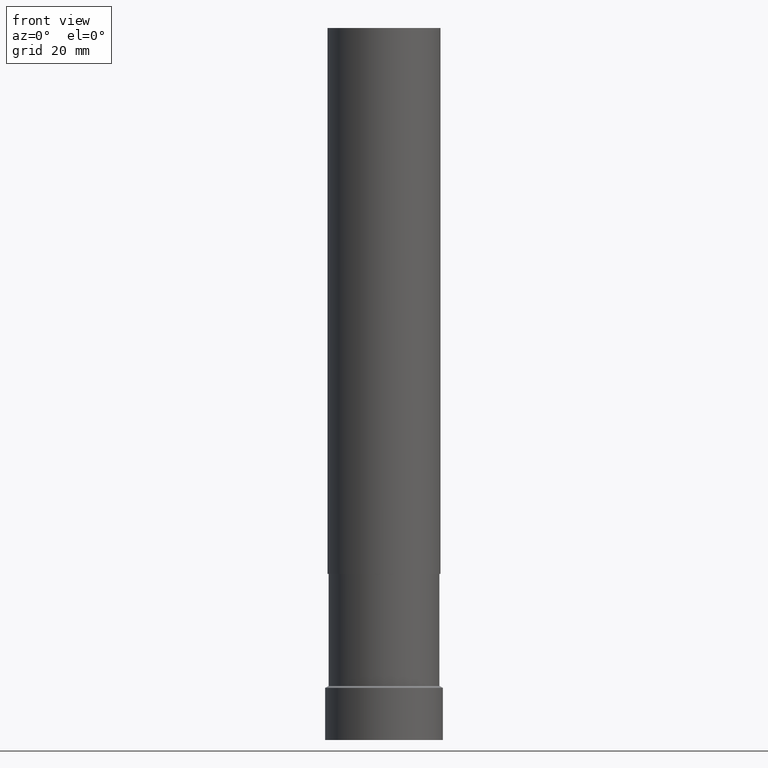
[diagram: clean part render]
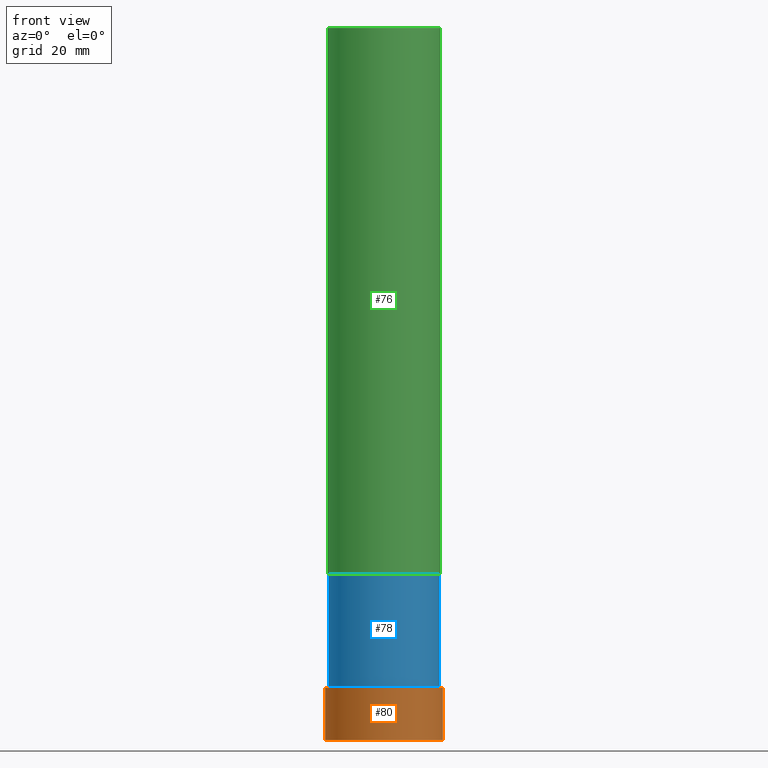
[diagram: same view with three faces highlighted in distinct colors, each labeled with its STEP entity id]
A machine part, front view with three faces highlighted in distinct colors.
Their STEP definitions:

[orange] entity #80 — the highlighted cylindrical surface (bore or boss wall) has radius 12.5 mm, axis along (-0, 0, 1).
#80=ADVANCED_FACE('',(#97,#98),#99,.T.);
#97=FACE_BOUND('',#116,.T.);
#98=FACE_BOUND('',#117,.T.);
#99=CYLINDRICAL_SURFACE('',#118,12.5);
#116=EDGE_LOOP('',(#145));
#117=EDGE_LOOP('',(#146));
#118=AXIS2_PLACEMENT_3D('',#147,#148,#149);
#145=ORIENTED_EDGE('',*,*,#159,.F.);
#146=ORIENTED_EDGE('',*,*,#158,.T.);
#147=CARTESIAN_POINT('',(-3.3647456673341E-016,7.03096171323307E-015,5.49504668558603));
#148=DIRECTION('',(-6.12323399573677E-017,1.27950900429579E-015,1.0));
#149=DIRECTION('',(7.35201775987839E-032,1.0,-1.27950900429579E-015));
#158=EDGE_CURVE('',#168,#168,#169,.T.);
#159=EDGE_CURVE('',#170,#170,#171,.T.);
#168=VERTEX_POINT('',#180);
#169=CIRCLE('',#181,12.5);
#170=VERTEX_POINT('',#182);
#171=CIRCLE('',#183,12.5000000000001);
#180=CARTESIAN_POINT('',(-6.72949133466819E-016,12.5,10.990093371172));
#181=AXIS2_PLACEMENT_3D('',#196,#197,#198);
#182=CARTESIAN_POINT('',(1.57772181044202E-030,12.5000000000001,-2.8421709430404E-014));
#183=AXIS2_PLACEMENT_3D('',#199,#200,#201);
#196=CARTESIAN_POINT('',(-6.72949133466821E-016,1.40619234264661E-014,10.9900933711721));
#197=DIRECTION('',(6.12323399573677E-017,-1.27950900429579E-015,-1.0));
#198=DIRECTION('',(7.35201775987839E-032,1.0,-1.27950900429579E-015));
#199=CARTESIAN_POINT('',(0.0,0.0,0.0));
#200=DIRECTION('',(6.12323399573677E-017,-1.27950900429579E-015,-1.0));
#201=DIRECTION('',(7.35201775987839E-032,1.0,-1.27950900429579E-015));

[blue] entity #78 — the highlighted cylindrical surface (bore or boss wall) has radius 11.75 mm, axis along (-0, 0, 1).
#78=ADVANCED_FACE('',(#91,#92),#93,.T.);
#91=FACE_BOUND('',#110,.T.);
#92=FACE_BOUND('',#111,.T.);
#93=CYLINDRICAL_SURFACE('',#112,11.75);
#110=EDGE_LOOP('',(#135));
#111=EDGE_LOOP('',(#136));
#112=AXIS2_PLACEMENT_3D('',#137,#138,#139);
#135=ORIENTED_EDGE('',*,*,#157,.F.);
#136=ORIENTED_EDGE('',*,*,#156,.T.);
#137=CARTESIAN_POINT('',(-1.42028942159775E-015,2.96783220256753E-014,23.1950864949243));
#138=DIRECTION('',(-6.12323399573677E-017,1.27950900429579E-015,1.0));
#139=DIRECTION('',(7.35201775987839E-032,1.0,-1.27950900429579E-015));
#156=EDGE_CURVE('',#164,#164,#165,.T.);
#157=EDGE_CURVE('',#166,#166,#167,.T.);
#164=VERTEX_POINT('',#176);
#165=CIRCLE('',#177,11.7499999999999);
#166=VERTEX_POINT('',#178);
#167=CIRCLE('',#179,11.75);
#176=CARTESIAN_POINT('',(-2.14313189850818E-015,11.75,35.0000000000051));
#177=AXIS2_PLACEMENT_3D('',#190,#191,#192);
#178=CARTESIAN_POINT('',(-6.9744694468732E-016,11.7500000000001,11.3901729898435));
#179=AXIS2_PLACEMENT_3D('',#193,#194,#195);
#190=CARTESIAN_POINT('',(-2.14313189850818E-015,4.47828151503592E-014,35.0000000000051));
#191=DIRECTION('',(6.12323399573677E-017,-1.27950900429579E-015,-1.0));
#192=DIRECTION('',(7.35201775987839E-032,1.0,-1.27950900429579E-015));
#193=CARTESIAN_POINT('',(-6.97446944687323E-016,1.45738289009914E-014,11.3901729898435));
#194=DIRECTION('',(6.12323399573677E-017,-1.27950900429579E-015,-1.0));
#195=DIRECTION('',(7.35201775987839E-032,1.0,-1.27950900429579E-015));

[green] entity #76 — the highlighted cylindrical surface (bore or boss wall) has radius 12 mm, axis along (-0, 0, 1).
#76=ADVANCED_FACE('',(#85,#86),#87,.T.);
#85=FACE_BOUND('',#104,.T.);
#86=FACE_BOUND('',#105,.T.);
#87=CYLINDRICAL_SURFACE('',#106,12.0000000000003);
#104=EDGE_LOOP('',(#125));
#105=EDGE_LOOP('',(#126));
#106=AXIS2_PLACEMENT_3D('',#127,#128,#129);
#125=ORIENTED_EDGE('',*,*,#155,.F.);
#126=ORIENTED_EDGE('',*,*,#154,.T.);
#127=CARTESIAN_POINT('',(-5.66399144605646E-015,1.1835458289736E-013,92.4999999999992));
#128=DIRECTION('',(-6.12323399573677E-017,1.27950900429579E-015,1.0));
#129=DIRECTION('',(7.35201775987839E-032,1.0,-1.27950900429579E-015));
#154=EDGE_CURVE('',#160,#160,#161,.T.);
#155=EDGE_CURVE('',#162,#162,#163,.T.);
#160=VERTEX_POINT('',#172);
#161=CIRCLE('',#173,12.0000000000005);
#162=VERTEX_POINT('',#174);
#163=CIRCLE('',#175,12.0000000000001);
#172=CARTESIAN_POINT('',(-9.1848509936051E-015,12.0000000000006,149.999999999999));
#173=AXIS2_PLACEMENT_3D('',#184,#185,#186);
#174=CARTESIAN_POINT('',(-2.14313189850781E-015,12.0000000000001,34.9999999999991));
#175=AXIS2_PLACEMENT_3D('',#187,#188,#189);
#184=CARTESIAN_POINT('',(-9.1848509936051E-015,1.91926350644368E-013,149.999999999999));
#185=DIRECTION('',(6.12323399573677E-017,-1.27950900429579E-015,-1.0));
#186=DIRECTION('',(7.35201775987839E-032,1.0,-1.27950900429579E-015));
#187=CARTESIAN_POINT('',(-2.14313189850781E-015,4.47828151503516E-014,34.9999999999991));
#188=DIRECTION('',(6.12323399573677E-017,-1.27950900429579E-015,-1.0));
#189=DIRECTION('',(7.35201775987839E-032,1.0,-1.27950900429579E-015));